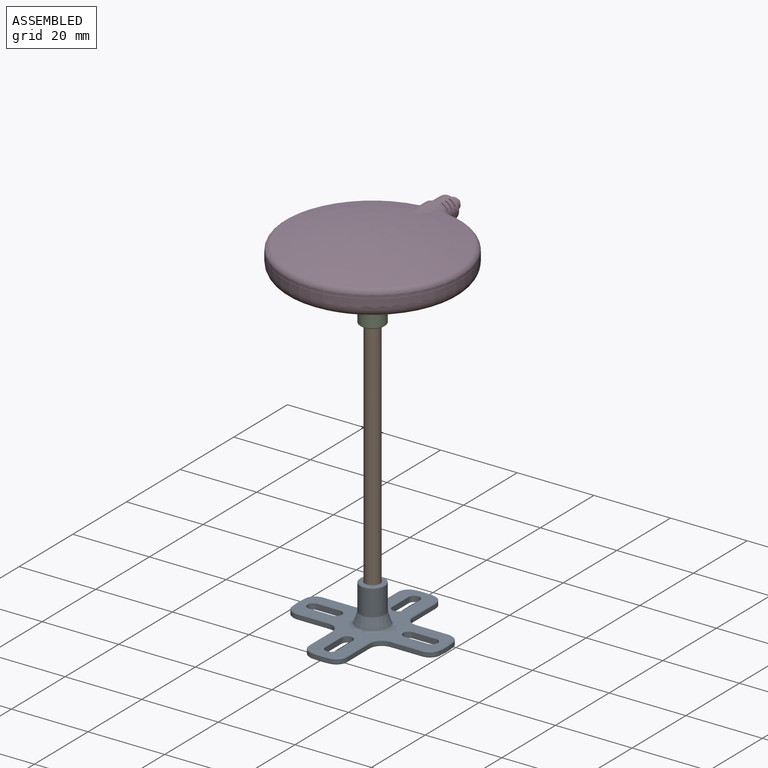
[diagram: assembled view]
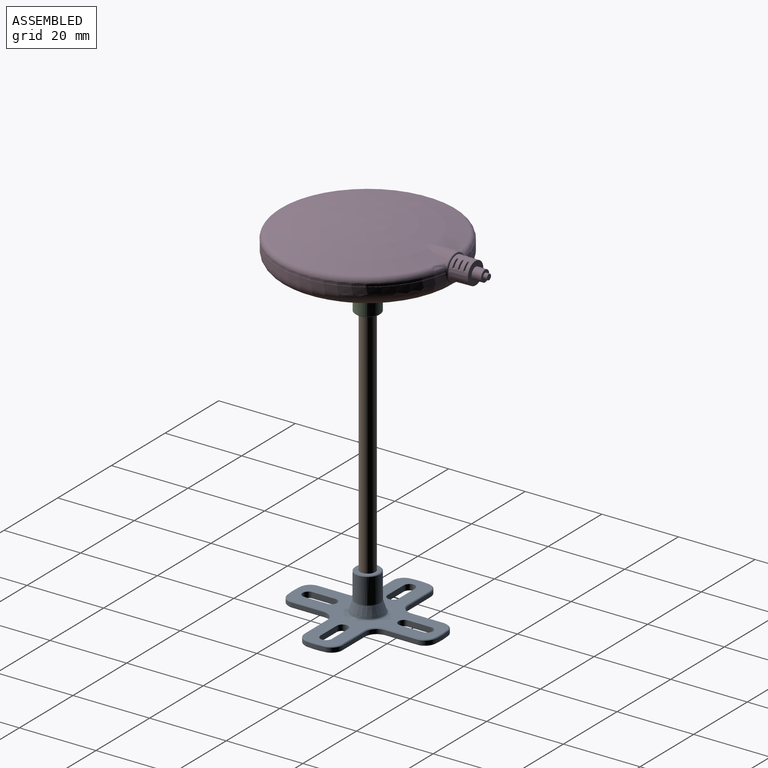
[diagram: assembled view, second angle]
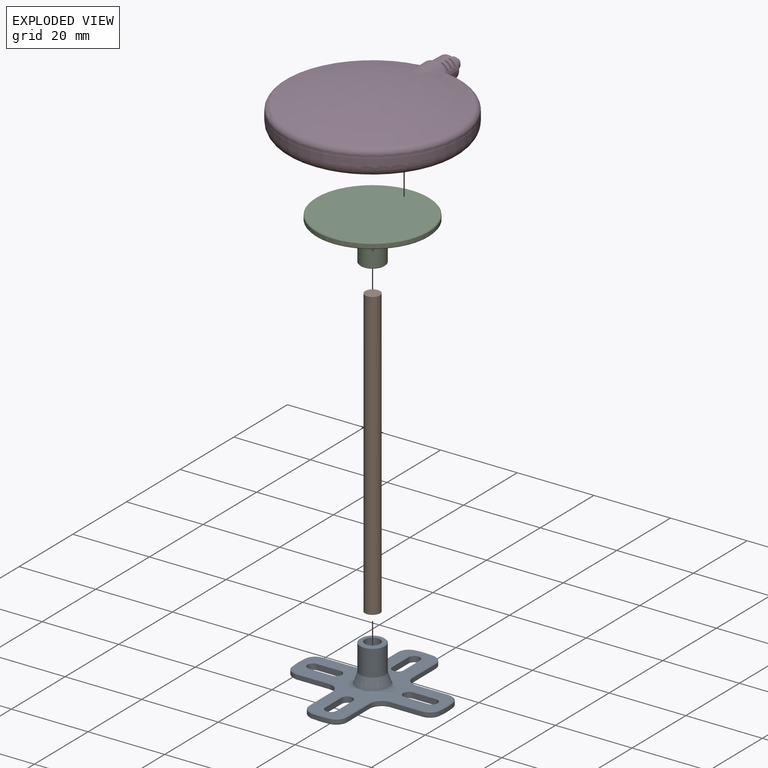
[diagram: exploded view]
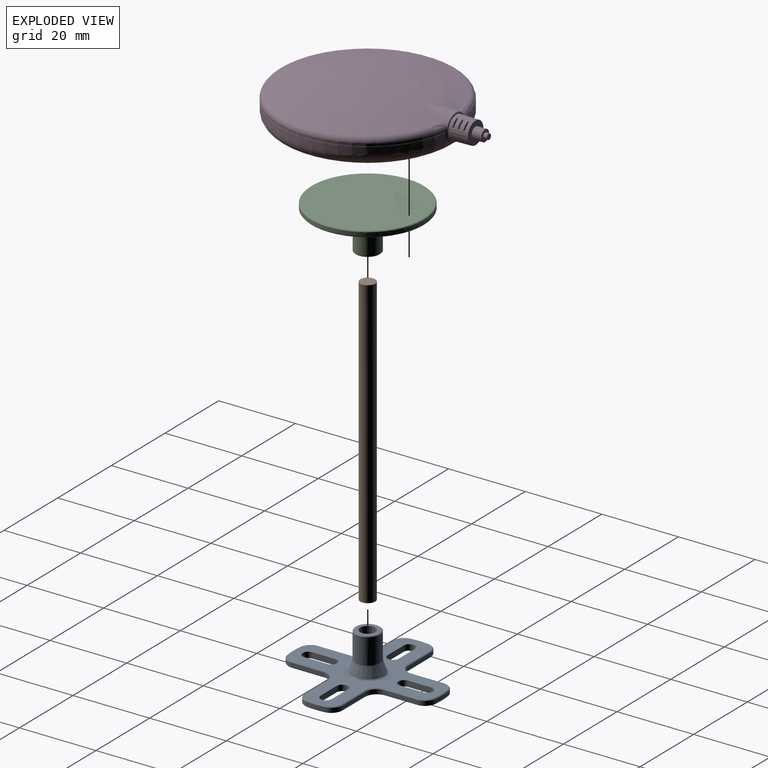
[diagram: exploded view, second angle]
ASSEMBLY  parts=4 mates=3
PART A: 104 faces, bbox 39x11.5x39 mm
  f0: plane 4.02x4mm, normal (0,1,0), area 12.6mm2, adj f1,f2
  f1: cylinder r=2mm len=7mm, axis (0,1,0), area 44mm2, adj f0,f2,f3
  f2: cylinder r=2mm len=7mm, axis (0,1,0), area 44mm2, adj f0,f1,f3
  f3: plane 6.11x6.1mm, normal (0,1,0), area 16.7mm2, adj f1,f2,f4,f5
  f4: cone r=0mm half-angle=45deg, axis (0,-1,0), area 2.8mm2, adj f3,f5,f6
  f5: cone r=0mm half-angle=45deg, axis (0,-1,0), area 2.8mm2, adj f3,f4,f7
  f6: cylinder r=3.25mm len=6.72mm, axis (0,1,0), area 68.6mm2, adj f4,f7,f8
  f7: cylinder r=3.25mm len=6.72mm, axis (0,1,0), area 68.6mm2, adj f5,f6,f9
  f8: torus R=3.75mm, axis (0,1,0), area 1.6mm2, adj f6,f9,f10
  f9: torus R=3.75mm, axis (0,1,0), area 1.6mm2, adj f7,f8,f11
  f10: cone r=0mm half-angle=18.4deg, axis (0,-1,0), area 31.7mm2, adj f8,f11,f36
  f11: cone r=0mm half-angle=18.4deg, axis (0,-1,0), area 31.7mm2, adj f9,f10,f37
  f12: cone r=0mm half-angle=45deg, axis (0,-1,0), area 1.3mm2, adj f13,f35,f61,f62
  f13: cone r=0mm half-angle=45deg, axis (0,-1,0), area 1.2mm2, adj f12,f14,f38,f62
  f14: plane 8.38x0.2mm, normal (0,0.71,0.71), area 2.4mm2, adj f13,f15,f39,f62
  f15: cone r=0mm half-angle=45deg, axis (0,1,0), area 1.4mm2, adj f14,f16,f40,f62
  f16: plane 8.38x0.2mm, normal (-0.71,0.71,0), area 2.4mm2, adj f15,f17,f41,f62
  f17: cone r=0mm half-angle=45deg, axis (0,-1,0), area 1.2mm2, adj f16,f18,f42,f62
  f18: cone r=0mm half-angle=45deg, axis (0,-1,0), area 1.3mm2, adj f17,f19,f43,f62
  f19: cone r=0mm half-angle=45deg, axis (0,-1,0), area 1.2mm2, adj f18,f20,f44,f62
  f20: plane 8.38x0.2mm, normal (0.71,0.71,0), area 2.4mm2, adj f19,f21,f45,f62
  f21: cone r=0mm half-angle=45deg, axis (0,1,0), area 1.4mm2, adj f20,f22,f46,f62
  f22: plane 8.38x0.2mm, normal (0,0.71,0.71), area 2.4mm2, adj f21,f23,f47,f62
  f23: cone r=0mm half-angle=45deg, axis (0,-1,0), area 1.2mm2, adj f22,f24,f48,f62
  f24: cone r=0mm half-angle=45deg, axis (0,-1,0), area 1.3mm2, adj f23,f25,f49,f62
  f25: cone r=0mm half-angle=45deg, axis (0,-1,0), area 1.2mm2, adj f24,f26,f50,f62
  f26: plane 8.38x0.2mm, normal (0,0.71,-0.71), area 2.4mm2, adj f25,f27,f51,f62
  f27: cone r=0mm half-angle=45deg, axis (0,1,0), area 1.4mm2, adj f26,f28,f52,f62
  f28: plane 8.38x0.2mm, normal (0.71,0.71,0), area 2.4mm2, adj f27,f29,f53,f62
  f29: cone r=0mm half-angle=45deg, axis (0,-1,0), area 1.2mm2, adj f28,f30,f54,f62
  f30: cone r=0mm half-angle=45deg, axis (0,-1,0), area 1.3mm2, adj f29,f31,f55,f62
  f31: cone r=0mm half-angle=45deg, axis (0,-1,0), area 1.2mm2, adj f30,f32,f56,f62
  f32: plane 8.38x0.2mm, normal (-0.71,0.71,0), area 2.4mm2, adj f31,f33,f57,f62
  f33: cone r=0mm half-angle=45deg, axis (0,1,0), area 1.4mm2, adj f32,f34,f58,f62
  f34: plane 8.38x0.2mm, normal (0,0.71,-0.71), area 2.4mm2, adj f33,f35,f59,f62
  f35: cone r=0mm half-angle=45deg, axis (0,-1,0), area 1.2mm2, adj f12,f34,f60,f62
  f36: torus R=4.61mm, axis (0,1,0), area 8.5mm2, adj f10,f37,f62
  f37: torus R=4.61mm, axis (0,1,0), area 8.5mm2, adj f11,f36,f62
  f38: cylinder r=3mm len=2.98mm, axis (0,-1,0), area 4.8mm2, adj f13,f39,f61,f63
  f39: plane 8.38x1.1mm, normal (0,0,1), area 9.2mm2, adj f14,f38,f40,f64
  f40: cylinder r=3mm len=3mm, axis (0,1,0), area 5.2mm2, adj f15,f39,f41,f65
  f41: plane 8.38x1.1mm, normal (-1,0,0), area 9.2mm2, adj f16,f40,f42,f66
  f42: cylinder r=3mm len=2.98mm, axis (0,-1,0), area 4.8mm2, adj f17,f41,f43,f67
  f43: cylinder r=19.5mm len=4.73mm, axis (0,1,0), area 5.2mm2, adj f18,f42,f44,f68
  f44: cylinder r=3mm len=2.98mm, axis (0,-1,0), area 4.8mm2, adj f19,f43,f45,f69
  f45: plane 8.38x1.1mm, normal (1,0,0), area 9.2mm2, adj f20,f44,f46,f70
  f46: cylinder r=3mm len=3mm, axis (0,1,0), area 5.2mm2, adj f21,f45,f47,f71
  f47: plane 8.38x1.1mm, normal (0,0,1), area 9.2mm2, adj f22,f46,f48,f72
  f48: cylinder r=3mm len=2.98mm, axis (0,-1,0), area 4.8mm2, adj f23,f47,f49,f73
  f49: cylinder r=19.5mm len=4.73mm, axis (0,1,0), area 5.2mm2, adj f24,f48,f50,f74
  f50: cylinder r=3mm len=2.98mm, axis (0,-1,0), area 4.8mm2, adj f25,f49,f51,f75
  f51: plane 8.38x1.1mm, normal (0,0,-1), area 9.2mm2, adj f26,f50,f52,f76
  f52: cylinder r=3mm len=3mm, axis (0,1,0), area 5.2mm2, adj f27,f51,f53,f77
  f53: plane 8.38x1.1mm, normal (1,0,0), area 9.2mm2, adj f28,f52,f54,f78
  f54: cylinder r=3mm len=2.98mm, axis (0,-1,0), area 4.8mm2, adj f29,f53,f55,f79
  f55: cylinder r=19.5mm len=4.73mm, axis (0,1,0), area 5.2mm2, adj f30,f54,f56,f80
  f56: cylinder r=3mm len=2.98mm, axis (0,-1,0), area 4.8mm2, adj f31,f55,f57,f81
  f57: plane 8.38x1.1mm, normal (-1,0,0), area 9.2mm2, adj f32,f56,f58,f82
  f58: cylinder r=3mm len=3mm, axis (0,1,0), area 5.2mm2, adj f33,f57,f59,f83
  f59: plane 8.38x1.1mm, normal (0,0,-1), area 9.2mm2, adj f34,f58,f60,f84
  f60: cylinder r=3mm len=2.98mm, axis (0,-1,0), area 4.8mm2, adj f35,f59,f61,f85
  f61: cylinder r=19.5mm len=4.73mm, axis (0,1,0), area 5.2mm2, adj f12,f38,f60,f86
  f62: plane 38.65x38.65mm, normal (0,1,0), area 474.9mm2, adj f12,f13,f14,f15,f16,f17,f18,f19
  f63: cone r=0mm half-angle=45deg, axis (0,1,0), area 1.2mm2, adj f38,f64,f86,f103
  f64: plane 8.38x0.2mm, normal (0,-0.71,0.71), area 2.4mm2, adj f39,f63,f65,f103
  f65: cone r=0mm half-angle=45deg, axis (0,-1,0), area 1.4mm2, adj f40,f64,f66,f103
  f66: plane 8.38x0.2mm, normal (-0.71,-0.71,0), area 2.4mm2, adj f41,f65,f67,f103
  f67: cone r=0mm half-angle=45deg, axis (0,1,0), area 1.2mm2, adj f42,f66,f68,f103
  f68: cone r=0mm half-angle=45deg, axis (0,1,0), area 1.3mm2, adj f43,f67,f69,f103
  f69: cone r=0mm half-angle=45deg, axis (0,1,0), area 1.2mm2, adj f44,f68,f70,f103
  f70: plane 8.38x0.2mm, normal (0.71,-0.71,0), area 2.4mm2, adj f45,f69,f71,f103
  f71: cone r=0mm half-angle=45deg, axis (0,-1,0), area 1.4mm2, adj f46,f70,f72,f103
  f72: plane 8.38x0.2mm, normal (0,-0.71,0.71), area 2.4mm2, adj f47,f71,f73,f103
  f73: cone r=0mm half-angle=45deg, axis (0,1,0), area 1.2mm2, adj f48,f72,f74,f103
  f74: cone r=0mm half-angle=45deg, axis (0,1,0), area 1.3mm2, adj f49,f73,f75,f103
  f75: cone r=0mm half-angle=45deg, axis (0,1,0), area 1.2mm2, adj f50,f74,f76,f103
  f76: plane 8.38x0.2mm, normal (0,-0.71,-0.71), area 2.4mm2, adj f51,f75,f77,f103
  f77: cone r=0mm half-angle=45deg, axis (0,-1,0), area 1.4mm2, adj f52,f76,f78,f103
  f78: plane 8.38x0.2mm, normal (0.71,-0.71,0), area 2.4mm2, adj f53,f77,f79,f103
  f79: cone r=0mm half-angle=45deg, axis (0,1,0), area 1.2mm2, adj f54,f78,f80,f103
  f80: cone r=0mm half-angle=45deg, axis (0,1,0), area 1.3mm2, adj f55,f79,f81,f103
  f81: cone r=0mm half-angle=45deg, axis (0,1,0), area 1.2mm2, adj f56,f80,f82,f103
  f82: plane 8.38x0.2mm, normal (-0.71,-0.71,0), area 2.4mm2, adj f57,f81,f83,f103
  f83: cone r=0mm half-angle=45deg, axis (0,-1,0), area 1.4mm2, adj f58,f82,f84,f103
  f84: plane 8.38x0.2mm, normal (0,-0.71,-0.71), area 2.4mm2, adj f59,f83,f85,f103
  f85: cone r=0mm half-angle=45deg, axis (0,1,0), area 1.2mm2, adj f60,f84,f86,f103
  f86: cone r=0mm half-angle=45deg, axis (0,1,0), area 1.3mm2, adj f61,f63,f85,f103
  f87: plane 6.03x1.5mm, normal (1,0,0), area 9mm2, adj f62,f88,f90,f103
  f88: cylinder r=1.49mm len=2.97mm, axis (0,1,0), area 7mm2, adj f62,f87,f89,f103
  f89: plane 6.03x1.5mm, normal (-1,0,0), area 9mm2, adj f62,f88,f90,f103
  f90: cylinder r=1.49mm len=2.97mm, axis (0,1,0), area 7mm2, adj f62,f87,f89,f103
  f91: plane 6.03x1.5mm, normal (0,0,-1), area 9mm2, adj f62,f92,f94,f103
  f92: cylinder r=1.49mm len=2.97mm, axis (0,1,0), area 7mm2, adj f62,f91,f93,f103
  f93: plane 6.03x1.5mm, normal (0,0,1), area 9mm2, adj f62,f92,f94,f103
  f94: cylinder r=1.49mm len=2.97mm, axis (0,1,0), area 7mm2, adj f62,f91,f93,f103
  f95: plane 6.03x1.5mm, normal (-1,0,0), area 9mm2, adj f62,f96,f98,f103
  f96: cylinder r=1.49mm len=2.97mm, axis (0,1,0), area 7mm2, adj f62,f95,f97,f103
  f97: plane 6.03x1.5mm, normal (1,0,0), area 9mm2, adj f62,f96,f98,f103
  f98: cylinder r=1.49mm len=2.97mm, axis (0,1,0), area 7mm2, adj f62,f95,f97,f103
  f99: plane 6.03x1.5mm, normal (0,0,1), area 9mm2, adj f62,f100,f102,f103
  f100: cylinder r=1.49mm len=2.97mm, axis (0,1,0), area 7mm2, adj f62,f99,f101,f103
  f101: plane 6.03x1.5mm, normal (0,0,-1), area 9mm2, adj f62,f100,f102,f103
  f102: cylinder r=1.49mm len=2.97mm, axis (0,1,0), area 7mm2, adj f62,f99,f101,f103
  f103: plane 38.65x38.65mm, normal (0,-1,0), area 541.7mm2, adj f63,f64,f65,f66,f67,f68,f69,f70
PART B: 4 faces, bbox 3.9x75x3.9 mm
  f0: plane 3.91x3.9mm, normal (0,1,0), area 11.9mm2, adj f1,f2
  f1: cylinder r=1.95mm len=75mm, axis (0,1,0), area 459.5mm2, adj f0,f2,f3
  f2: cylinder r=1.95mm len=75mm, axis (0,1,0), area 459.5mm2, adj f0,f1,f3
  f3: plane 3.91x3.9mm, normal (0,-1,0), area 11.9mm2, adj f1,f2
PART C: 22 faces, bbox 29.5x11.5x29.5 mm
  f0: plane 4.01x4mm, normal (0,-1,0), area 12.6mm2, adj f1,f2
  f1: cylinder r=2mm len=7mm, axis (0,1,0), area 44mm2, adj f0,f2,f3
  f2: cylinder r=2mm len=7mm, axis (0,1,0), area 44mm2, adj f0,f1,f3
  f3: plane 6.12x6.1mm, normal (0,-1,0), area 16.7mm2, adj f1,f2,f4,f5
  f4: cone r=0mm half-angle=45deg, axis (0,1,0), area 2.8mm2, adj f3,f5,f6
  f5: cone r=0mm half-angle=45deg, axis (0,1,0), area 2.8mm2, adj f3,f4,f7
  f6: cylinder r=3.25mm len=6.72mm, axis (0,1,0), area 68.6mm2, adj f4,f7,f8
  f7: cylinder r=3.25mm len=6.72mm, axis (0,1,0), area 68.6mm2, adj f5,f6,f9
  f8: torus R=3.75mm, axis (0,1,0), area 1.6mm2, adj f6,f9,f10
  f9: torus R=3.75mm, axis (0,1,0), area 1.6mm2, adj f7,f8,f11
  f10: cone r=0mm half-angle=18.4deg, axis (0,1,0), area 31.7mm2, adj f8,f11,f12
  f11: cone r=0mm half-angle=18.4deg, axis (0,1,0), area 31.7mm2, adj f9,f10,f13
  f12: torus R=4.61mm, axis (0,1,0), area 8.5mm2, adj f10,f13,f14
  f13: torus R=4.61mm, axis (0,1,0), area 8.5mm2, adj f11,f12,f14
  f14: plane 29.12x29.1mm, normal (0,-1,0), area 598.3mm2, adj f12,f13,f15,f18
  f15: cone r=0mm half-angle=45deg, axis (0,1,0), area 13mm2, adj f14,f18,f19
  f16: plane 29.12x29.1mm, normal (0,1,0), area 665.1mm2, adj f17,f20
  f17: cone r=0mm half-angle=45deg, axis (0,-1,0), area 13mm2, adj f16,f19,f20
  f18: cone r=0mm half-angle=45deg, axis (0,1,0), area 13mm2, adj f14,f15,f21
  f19: cylinder r=14.75mm len=29.5mm, axis (0,1,0), area 51mm2, adj f15,f17,f21
  f20: cone r=0mm half-angle=45deg, axis (0,-1,0), area 13mm2, adj f16,f17,f21
  f21: cylinder r=14.75mm len=29.5mm, axis (0,1,0), area 51mm2, adj f18,f19,f20
PART D: 88 faces, bbox 50.2x56.8x10.1 mm
  f0: sphere r=84.07mm, area 1527.2mm2, adj f1,f3
  f1: bspline ~6.68x6.28mm, area 3.9mm2, adj f0,f2,f5,f6
  f2: bspline ~1.2x0.92mm, area 0.6mm2, adj f1,f3,f6,f87
  f3: torus R=21.65mm, axis (0,0,1), area 266.5mm2, adj f0,f2,f4,f5,f11,f87
  f4: bspline ~1.27x0.79mm, area 0.6mm2, adj f3,f5,f9,f10
  f5: bspline ~1.2x0.92mm, area 0.6mm2, adj f1,f3,f4,f6
  f6: cylinder r=3.5mm len=7.05mm, axis (0,-1,0), area 30.4mm2, adj f1,f2,f5,f9
  f7: cylinder r=3.5mm len=0.12mm, axis (0,-1,0), area 0mm2, adj f9,f12,f13,f14
  f8: cylinder r=3.5mm len=0.12mm, axis (0,-1,0), area 0mm2, adj f9,f12,f13,f14
  f9: torus R=3.25mm, axis (0,-1,0), area 6.7mm2, adj f4,f6,f7,f8,f10,f12,f14,f16
  f10: bspline ~0.69x0.44mm, area 0.3mm2, adj f4,f9,f11,f12
  f11: cylinder r=23.15mm len=46.3mm, axis (0,0,1), area 80.9mm2, adj f3,f10,f12,f86
  f12: plane 46.38x46.28mm, normal (0,0,-1), area 13.8mm2, adj f7,f8,f9,f10,f11,f13,f86
  f13: cylinder r=23.05mm len=46.1mm, axis (0,0,1), area 6.9mm2, adj f7,f8,f12,f14
  f14: plane 46.38x46.28mm, normal (0,0,1), area 13.8mm2, adj f7,f8,f9,f13,f15,f16,f29
  f15: cylinder r=23.15mm len=46.3mm, axis (0,0,1), area 238.6mm2, adj f14,f16,f18,f29
  f16: bspline ~1.86x0.82mm, area 0.7mm2, adj f9,f14,f15,f17
  f17: bspline ~0.51x0.49mm, area 0.1mm2, adj f9,f16,f18,f30
  f18: torus R=19.9mm, axis (0,0,1), area 695mm2, adj f15,f17,f19,f28,f30
  f19: plane 39.8x39.8mm, normal (0,0,-1), area 1224.5mm2, adj f18,f20,f25,f26,f27
  f20: cylinder r=1.25mm len=2.5mm, axis (0,0,-1), area 15.7mm2, adj f19,f21
  f21: plane 2.5x2.5mm, normal (0,0,-1), area 4.9mm2, adj f20
  f22: plane 2.5x2.5mm, normal (0,0,-1), area 4.9mm2, adj f25
  f23: plane 2.5x2.5mm, normal (0,0,-1), area 4.9mm2, adj f26
  f24: plane 2.5x2.5mm, normal (0,0,-1), area 4.9mm2, adj f27
  f25: cylinder r=1.25mm len=2.5mm, axis (0,0,-1), area 15.7mm2, adj f19,f22
  f26: cylinder r=1.25mm len=2.5mm, axis (0,0,-1), area 15.7mm2, adj f19,f23
  f27: cylinder r=1.25mm len=2.5mm, axis (0,0,-1), area 15.7mm2, adj f19,f24
  f28: bspline ~3.51x2.22mm, area 1.6mm2, adj f9,f18,f29,f30
  f29: bspline ~1.85x0.82mm, area 0.7mm2, adj f9,f14,f15,f28
  f30: bspline ~3.36x1.96mm, area 1.4mm2, adj f9,f17,f18,f28
  f31: plane 6.5x6.5mm, normal (0,1,0), area 4.9mm2, adj f9,f32
  f32: cone r=2.95mm half-angle=1.1deg, axis (0,-1,0), area 80mm2, adj f31,f33,f38,f39,f40,f41,f42,f43
  f33: plane 5.8x5.8mm, normal (0,1,0), area 19.4mm2, adj f32,f34
  f34: cylinder r=1.5mm len=3mm, axis (0,1,0), area 23.6mm2, adj f33,f35
  f35: plane 3x3mm, normal (0,1,0), area 5.3mm2, adj f34,f36
  f36: cylinder r=0.75mm len=1.5mm, axis (0,1,0), area 4.7mm2, adj f35,f37
  f37: plane 1.5x1.5mm, normal (0,1,0), area 1.8mm2, adj f36
  f38: plane 1.75x0.41mm, normal (0,0,1), area 0.7mm2, adj f32,f44,f45,f46
  f39: plane 1.78x0.41mm, normal (0,0,1), area 0.7mm2, adj f32,f47,f48,f49
  f40: plane 1.81x0.41mm, normal (0,0,1), area 0.7mm2, adj f32,f50,f51,f52
  f41: plane 1.81x0.41mm, normal (0,0,1), area 0.7mm2, adj f32,f53,f54,f55
  f42: plane 1.78x0.41mm, normal (0,0,1), area 0.7mm2, adj f32,f56,f57,f58
  f43: plane 1.75x0.41mm, normal (0,0,1), area 0.7mm2, adj f32,f59,f60,f61
  f44: plane 1.75x1.75mm, normal (0,1,0), area 2mm2, adj f32,f38,f45
  f45: plane 1.75x0.41mm, normal (1,0,0), area 0.7mm2, adj f32,f38,f44,f46
  f46: plane 1.74x1.74mm, normal (0,-1,0), area 2mm2, adj f32,f38,f45
  f47: plane 1.78x1.78mm, normal (0,1,0), area 2.1mm2, adj f32,f39,f48
  f48: plane 1.78x0.41mm, normal (1,0,0), area 0.7mm2, adj f32,f39,f47,f49
  f49: plane 1.77x1.77mm, normal (0,-1,0), area 2mm2, adj f32,f39,f48
  f50: plane 1.81x1.81mm, normal (0,1,0), area 2.1mm2, adj f32,f40,f51
  f51: plane 1.81x0.41mm, normal (1,0,0), area 0.7mm2, adj f32,f40,f50,f52
  f52: plane 1.8x1.8mm, normal (0,-1,0), area 2.1mm2, adj f32,f40,f51
  f53: plane 1.8x1.8mm, normal (0,-1,0), area 2.1mm2, adj f32,f41,f54
  f54: plane 1.81x0.41mm, normal (-1,0,0), area 0.7mm2, adj f32,f41,f53,f55
  f55: plane 1.81x1.81mm, normal (0,1,0), area 2.1mm2, adj f32,f41,f54
  f56: plane 1.77x1.77mm, normal (0,-1,0), area 2mm2, adj f32,f42,f57
  f57: plane 1.78x0.41mm, normal (-1,0,0), area 0.7mm2, adj f32,f42,f56,f58
  f58: plane 1.78x1.78mm, normal (0,1,0), area 2.1mm2, adj f32,f42,f57
  f59: plane 1.74x1.74mm, normal (0,-1,0), area 2mm2, adj f32,f43,f60
  f60: plane 1.75x0.41mm, normal (-1,0,0), area 0.7mm2, adj f32,f43,f59,f61
  f61: plane 1.75x1.75mm, normal (0,1,0), area 2mm2, adj f32,f43,f60
  f62: plane 1.75x0.41mm, normal (0,0,-1), area 0.7mm2, adj f32,f68,f69,f70
  f63: plane 1.78x0.41mm, normal (0,0,-1), area 0.7mm2, adj f32,f71,f72,f73
  f64: plane 1.81x0.41mm, normal (0,0,-1), area 0.7mm2, adj f32,f74,f75,f76
  f65: plane 1.75x0.41mm, normal (0,0,-1), area 0.7mm2, adj f32,f77,f78,f79
  f66: plane 1.78x0.41mm, normal (0,0,-1), area 0.7mm2, adj f32,f80,f81,f82
  f67: plane 1.81x0.41mm, normal (0,0,-1), area 0.7mm2, adj f32,f83,f84,f85
  f68: plane 1.75x1.75mm, normal (0,1,0), area 2mm2, adj f32,f62,f69
  f69: plane 1.75x0.41mm, normal (-1,0,0), area 0.7mm2, adj f32,f62,f68,f70
  f70: plane 1.74x1.74mm, normal (0,-1,0), area 2mm2, adj f32,f62,f69
  f71: plane 1.78x1.78mm, normal (0,1,0), area 2.1mm2, adj f32,f63,f72
  f72: plane 1.78x0.41mm, normal (-1,0,0), area 0.7mm2, adj f32,f63,f71,f73
  f73: plane 1.77x1.77mm, normal (0,-1,0), area 2mm2, adj f32,f63,f72
  f74: plane 1.81x1.81mm, normal (0,1,0), area 2.1mm2, adj f32,f64,f75
  f75: plane 1.81x0.41mm, normal (-1,0,0), area 0.7mm2, adj f32,f64,f74,f76
  f76: plane 1.8x1.8mm, normal (0,-1,0), area 2.1mm2, adj f32,f64,f75
  f77: plane 1.74x1.74mm, normal (0,-1,0), area 2mm2, adj f32,f65,f78
  f78: plane 1.75x0.41mm, normal (1,0,0), area 0.7mm2, adj f32,f65,f77,f79
  f79: plane 1.75x1.75mm, normal (0,1,0), area 2mm2, adj f32,f65,f78
  f80: plane 1.77x1.77mm, normal (0,-1,0), area 2mm2, adj f32,f66,f81
  f81: plane 1.78x0.41mm, normal (1,0,0), area 0.7mm2, adj f32,f66,f80,f82
  f82: plane 1.78x1.78mm, normal (0,1,0), area 2.1mm2, adj f32,f66,f81
  f83: plane 1.8x1.8mm, normal (0,-1,0), area 2.1mm2, adj f32,f67,f84
  f84: plane 1.81x0.41mm, normal (1,0,0), area 0.7mm2, adj f32,f67,f83,f85
  f85: plane 1.81x1.81mm, normal (0,1,0), area 2.1mm2, adj f32,f67,f84
  f86: bspline ~0.68x0.44mm, area 0.3mm2, adj f9,f11,f12,f87
  f87: bspline ~1.25x0.92mm, area 0.6mm2, adj f2,f3,f9,f86
PLACE A rot(axis=(1,0,0),90deg) t=(0,48.94,-52.14)mm
PLACE B rot(axis=(-1,0,0),90deg) t=(0,48.94,27.36)mm
PLACE C rot(axis=(1,0,0),90deg) t=(0,48.94,31.86)mm
PLACE D t=(0,48.94,36.86)mm
MATE fastened C.f20 <-> D.f3  axis (0,0,1) through (0,48.94,31.86)mm
MATE fastened C.f10 <-> B.f1  axis (0,0,-1) through (0,48.94,27.36)mm
MATE fastened A.f1 <-> B.f1  axis (0,0,1) through (0,48.94,-47.64)mm
